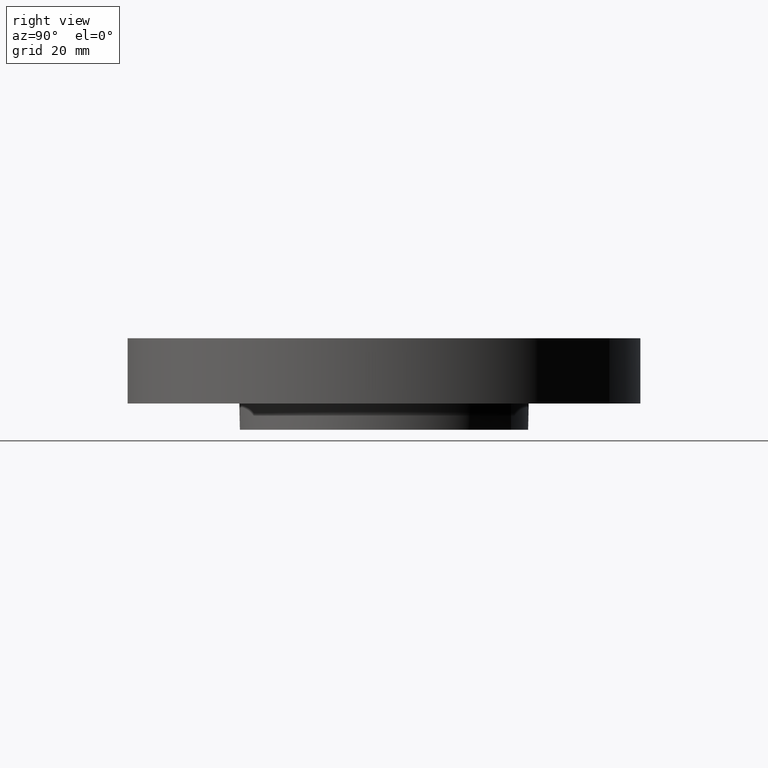
[diagram: clean part render]
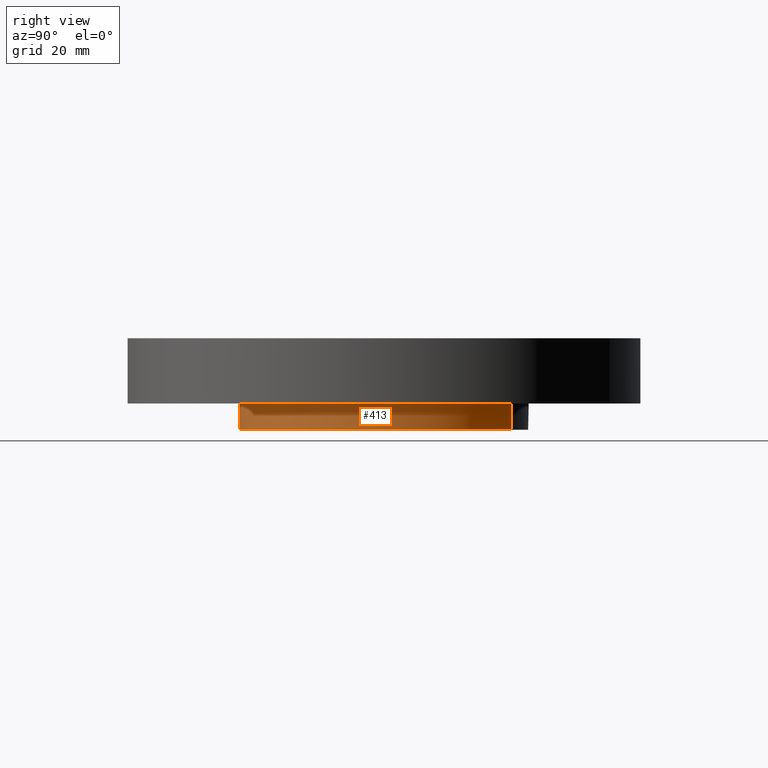
[diagram: same view with one face highlighted and labeled with its STEP entity id]
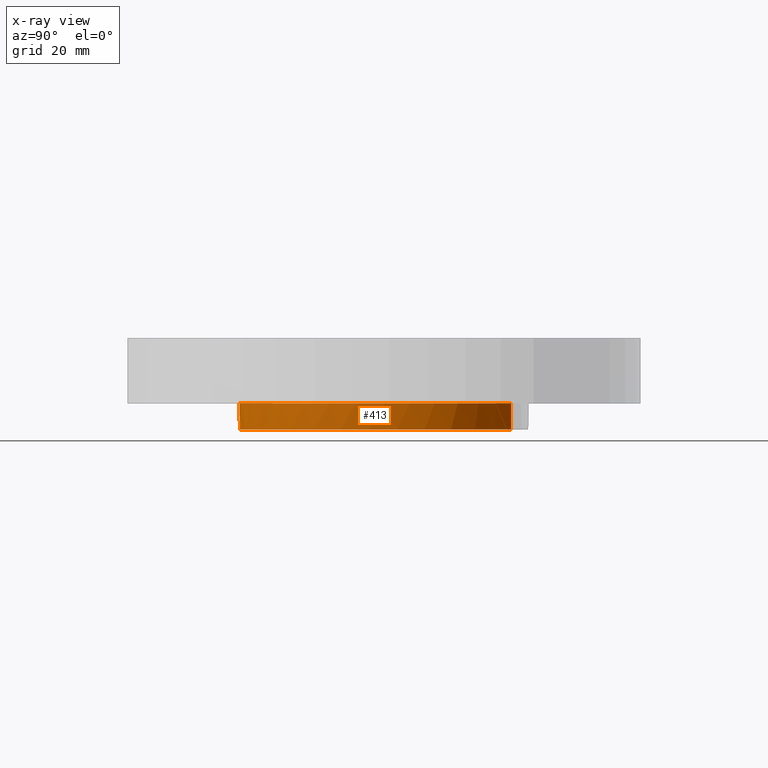
[diagram: x-ray of the same camera — body ghosted, the highlighted face saturated]
A machine part, right view. The second image highlights one B-rep face of the part: STEP entity #413.
The next image is the same camera in x-ray: the body ghosted, the highlighted face saturated — about 0% of this face is hidden behind the body in this view.
In plain terms, the highlighted cylindrical surface (partial cylindrical patch) has radius 34.925 mm, axis along (0, 0, -1).
Its self-contained STEP definition (entity closure, byte-faithful):
#61=AXIS2_PLACEMENT_3D('Circle Axis2P3D',#59,#60,$) ;
#316=AXIS2_PLACEMENT_3D('Circle Axis2P3D',#314,#315,$) ;
#321=AXIS2_PLACEMENT_3D('Circle Axis2P3D',#319,#320,$) ;
#366=AXIS2_PLACEMENT_3D('Circle Axis2P3D',#364,#365,$) ;
#393=AXIS2_PLACEMENT_3D('Cylinder Axis2P3D',#390,#391,#392) ;
#59=CARTESIAN_POINT('Axis2P3D Location',(0.,0.,-0.250000000001)) ;
#63=CARTESIAN_POINT('Vertex',(0.659210115583,1.2066760226,-0.250000000001)) ;
#65=CARTESIAN_POINT('Vertex',(-0.659210115583,-1.2066760226,-0.250000000001)) ;
#114=CARTESIAN_POINT('Vertex',(2.02112938519E-016,-1.37500000001,0.)) ;
#244=CARTESIAN_POINT('Vertex',(1.37500000001,0.,0.)) ;
#314=CARTESIAN_POINT('Axis2P3D Location',(0.,0.,0.)) ;
#319=CARTESIAN_POINT('Axis2P3D Location',(0.,0.,0.)) ;
#323=CARTESIAN_POINT('Vertex',(0.659210115583,1.2066760226,1.39870617276E-016)) ;
#361=CARTESIAN_POINT('Vertex',(-0.659210115583,-1.2066760226,1.39870617276E-016)) ;
#364=CARTESIAN_POINT('Axis2P3D Location',(0.,0.,0.)) ;
#390=CARTESIAN_POINT('Axis2P3D Location',(0.,0.,0.185000000001)) ;
#395=CARTESIAN_POINT('Line Origine',(0.659210115583,1.2066760226,-0.125)) ;
#400=CARTESIAN_POINT('Line Origine',(-0.659210115583,-1.2066760226,-0.125)) ;
#60=DIRECTION('Axis2P3D Direction',(0.,0.,-0.0393700787402)) ;
#315=DIRECTION('Axis2P3D Direction',(0.,0.,-0.0393700787402)) ;
#320=DIRECTION('Axis2P3D Direction',(0.,0.,-0.0393700787402)) ;
#365=DIRECTION('Axis2P3D Direction',(0.,0.,-0.0393700787402)) ;
#391=DIRECTION('Axis2P3D Direction',(0.,0.,-0.0393700787402)) ;
#392=DIRECTION('Axis2P3D XDirection',(-0.0188750212049,-0.0345504945626,0.)) ;
#396=DIRECTION('Vector Direction',(0.,0.,-0.0393700787402)) ;
#401=DIRECTION('Vector Direction',(0.,0.,-0.0393700787402)) ;
#397=VECTOR('Line Direction',#396,0.0393700787402) ;
#402=VECTOR('Line Direction',#401,0.0393700787402) ;
#406=ORIENTED_EDGE('',*,*,#67,.F.) ;
#407=ORIENTED_EDGE('',*,*,#399,.T.) ;
#408=ORIENTED_EDGE('',*,*,#325,.T.) ;
#409=ORIENTED_EDGE('',*,*,#318,.T.) ;
#410=ORIENTED_EDGE('',*,*,#368,.T.) ;
#411=ORIENTED_EDGE('',*,*,#404,.F.) ;
#413=ADVANCED_FACE('PartBody',(#412),#394,.T.) ;
#62=CIRCLE('generated circle',#61,1.37500000001) ;
#317=CIRCLE('generated circle',#316,1.37500000001) ;
#322=CIRCLE('generated circle',#321,1.37500000001) ;
#367=CIRCLE('generated circle',#366,1.37500000001) ;
#394=CYLINDRICAL_SURFACE('generated cylinder',#393,1.37500000001) ;
#67=EDGE_CURVE('',#64,#66,#62,.T.) ;
#318=EDGE_CURVE('',#245,#115,#317,.T.) ;
#325=EDGE_CURVE('',#324,#245,#322,.T.) ;
#368=EDGE_CURVE('',#115,#362,#367,.T.) ;
#399=EDGE_CURVE('',#64,#324,#398,.F.) ;
#404=EDGE_CURVE('',#66,#362,#403,.F.) ;
#405=EDGE_LOOP('',(#406,#407,#408,#409,#410,#411)) ;
#412=FACE_OUTER_BOUND('',#405,.T.) ;
#398=LINE('Line',#395,#397) ;
#403=LINE('Line',#400,#402) ;
#64=VERTEX_POINT('',#63) ;
#66=VERTEX_POINT('',#65) ;
#115=VERTEX_POINT('',#114) ;
#245=VERTEX_POINT('',#244) ;
#324=VERTEX_POINT('',#323) ;
#362=VERTEX_POINT('',#361) ;